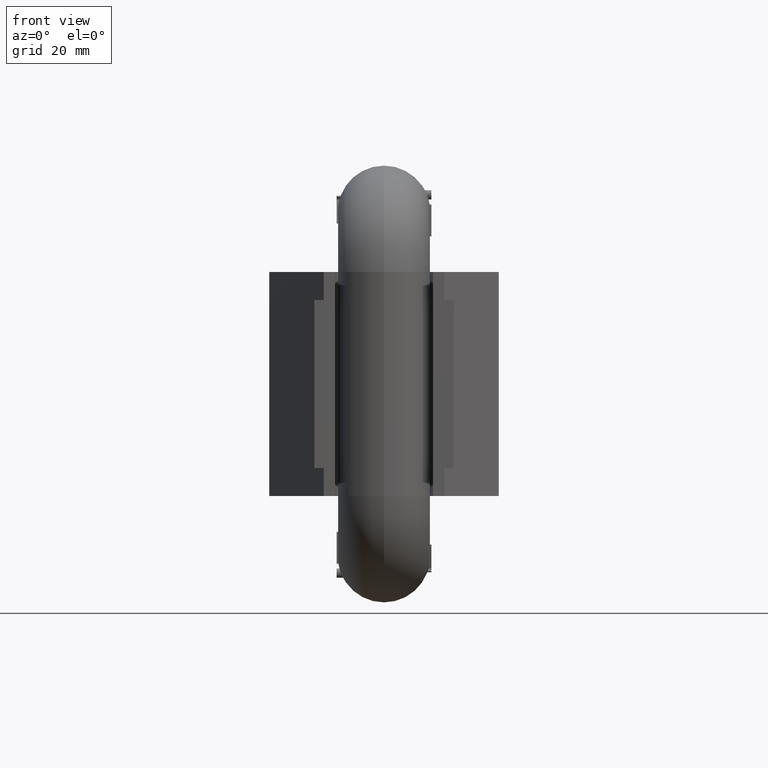
[diagram: clean part render]
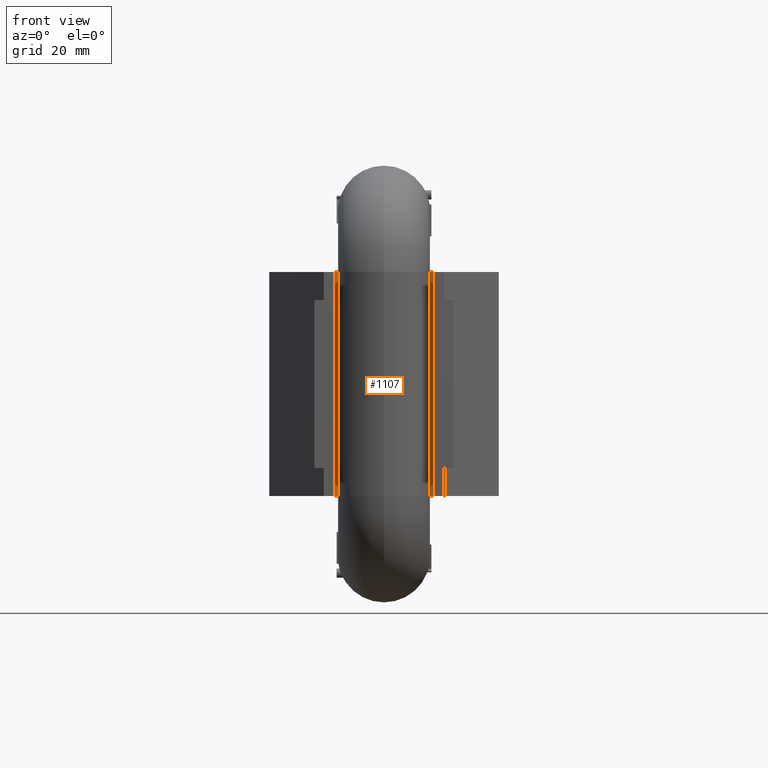
[diagram: same view with one face highlighted and labeled with its STEP entity id]
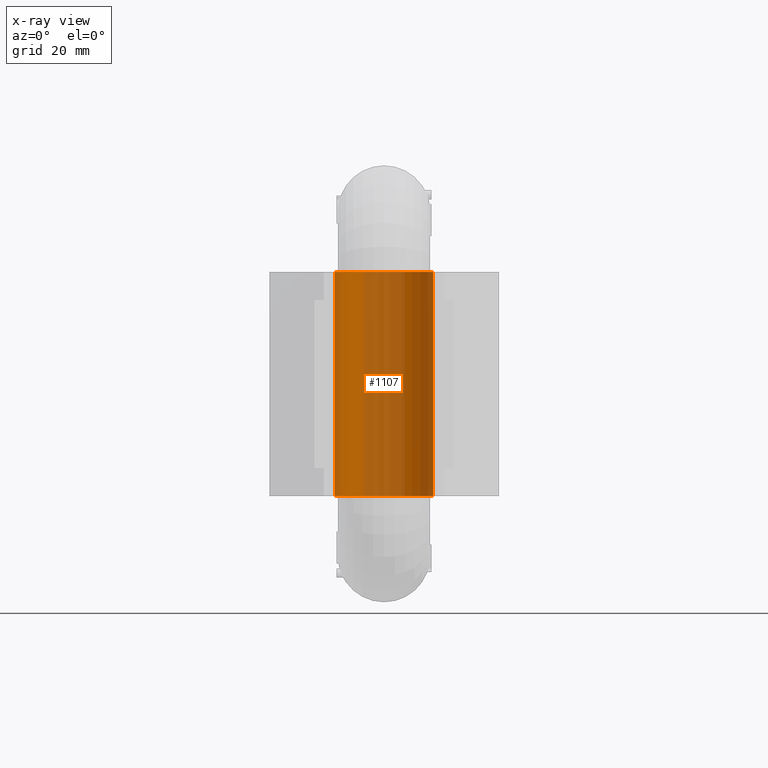
[diagram: x-ray of the same camera — body ghosted, the highlighted face saturated]
A machine part, front view. The second image highlights one B-rep face of the part: STEP entity #1107.
The next image is the same camera in x-ray: the body ghosted, the highlighted face saturated — about 41% of this face is hidden behind the body in this view.
In plain terms, the highlighted cylindrical surface (partial cylindrical patch) has radius 8.75 mm, axis along (0, 0, -1).
Its self-contained STEP definition (entity closure, byte-faithful):
#1073=CYLINDRICAL_SURFACE('',#8026,8.75);
#1107=ADVANCED_FACE('',(#1767),#1073,.F.);
#1767=FACE_OUTER_BOUND('',#2177,.T.);
#2177=EDGE_LOOP('',(#2788,#2789,#2790,#2791));
#2648=CIRCLE('',#8007,8.75);
#2651=CIRCLE('',#8011,8.75);
#2788=ORIENTED_EDGE('',*,*,#5760,.T.);
#2789=ORIENTED_EDGE('',*,*,#5795,.F.);
#2790=ORIENTED_EDGE('',*,*,#5745,.F.);
#2791=ORIENTED_EDGE('',*,*,#5794,.T.);
#4983=VERTEX_POINT('',#9786);
#4984=VERTEX_POINT('',#9788);
#4998=VERTEX_POINT('',#9817);
#4999=VERTEX_POINT('',#9819);
#5745=EDGE_CURVE('',#4983,#4984,#2648,.T.);
#5760=EDGE_CURVE('',#4999,#4998,#2651,.T.);
#5794=EDGE_CURVE('',#4983,#4999,#6924,.T.);
#5795=EDGE_CURVE('',#4984,#4998,#6925,.T.);
#6924=LINE('',#9882,#7400);
#6925=LINE('',#9884,#7401);
#7400=VECTOR('',#8465,1.);
#7401=VECTOR('',#8468,1.);
#8007=AXIS2_PLACEMENT_3D('',#9787,#8384,#8385);
#8011=AXIS2_PLACEMENT_3D('',#9818,#8404,#8405);
#8026=AXIS2_PLACEMENT_3D('',#9885,#8469,#8470);
#8384=DIRECTION('',(0.,0.,-1.));
#8385=DIRECTION('',(1.,1.98254111540207E-16,0.));
#8404=DIRECTION('',(0.,0.,-1.));
#8405=DIRECTION('',(1.,1.98254111540207E-16,0.));
#8465=DIRECTION('',(0.,0.,-1.));
#8468=DIRECTION('',(0.,0.,-1.));
#8469=DIRECTION('',(0.,0.,-1.));
#8470=DIRECTION('',(-1.,0.,0.));
#9786=CARTESIAN_POINT('',(-8.75,12.5,20.));
#9787=CARTESIAN_POINT('',(0.,12.5,20.));
#9788=CARTESIAN_POINT('',(8.75,12.5,20.));
#9817=CARTESIAN_POINT('',(8.75,12.5,-20.));
#9818=CARTESIAN_POINT('',(0.,12.5,-20.));
#9819=CARTESIAN_POINT('',(-8.75,12.5,-20.));
#9882=CARTESIAN_POINT('',(-8.75,12.5,20.));
#9884=CARTESIAN_POINT('',(8.75,12.5,20.));
#9885=CARTESIAN_POINT('',(0.,12.5,20.));